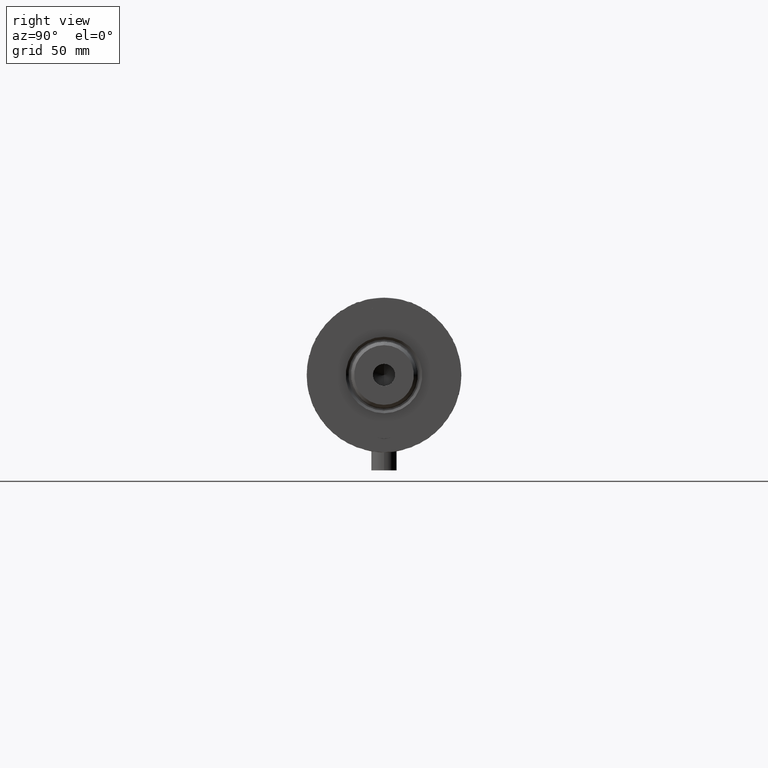
[diagram: clean part render]
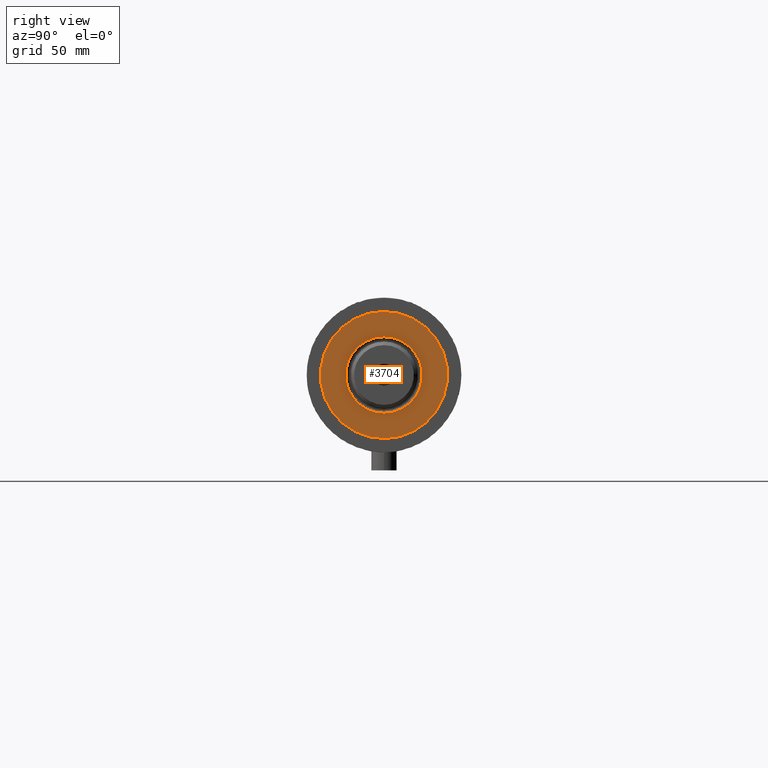
[diagram: same view with one face highlighted and labeled with its STEP entity id]
A machine part, right view. The second image highlights one B-rep face of the part: STEP entity #3704.
In plain terms, the highlighted planar face has unit normal (1, 0, -0).
Its self-contained STEP definition (entity closure, byte-faithful):
#5 = ORIENTED_EDGE ( 'NONE', *, *, #1178, .T. ) ;
#21 = CARTESIAN_POINT ( 'NONE',  ( 0.000000000000000000, 0.000000000000000000, 50.19999999999999574 ) ) ;
#26 = CARTESIAN_POINT ( 'NONE',  ( -18.04999999999996874, 2.210487472460968951E-15, 50.19999999999999574 ) ) ;
#154 = CARTESIAN_POINT ( 'NONE',  ( 0.000000000000000000, 0.000000000000000000, 50.19999999999999574 ) ) ;
#252 = EDGE_LOOP ( 'NONE', ( #5, #2339 ) ) ;
#473 = CIRCLE ( 'NONE', #1729, 30.00000000000000000 ) ;
#527 = EDGE_CURVE ( 'NONE', #4773, #532, #4729, .T. ) ;
#532 = VERTEX_POINT ( 'NONE', #2402 ) ;
#922 = DIRECTION ( 'NONE',  ( 1.000000000000000000, 0.000000000000000000, 0.000000000000000000 ) ) ;
#962 = CIRCLE ( 'NONE', #3645, 18.04999999999996874 ) ;
#1138 = DIRECTION ( 'NONE',  ( 1.000000000000000000, 0.000000000000000000, 0.000000000000000000 ) ) ;
#1178 = EDGE_CURVE ( 'NONE', #532, #4773, #962, .T. ) ;
#1222 = CARTESIAN_POINT ( 'NONE',  ( 30.00000000000000000, 3.673940397442058389E-15, 50.19999999999999574 ) ) ;
#1277 = DIRECTION ( 'NONE',  ( 1.000000000000000000, 0.000000000000000000, 0.000000000000000000 ) ) ;
#1280 = CARTESIAN_POINT ( 'NONE',  ( 0.000000000000000000, 0.000000000000000000, 50.19999999999999574 ) ) ;
#1360 = VERTEX_POINT ( 'NONE', #1442 ) ;
#1387 = VERTEX_POINT ( 'NONE', #1222 ) ;
#1411 = EDGE_LOOP ( 'NONE', ( #4191, #4004 ) ) ;
#1442 = CARTESIAN_POINT ( 'NONE',  ( -30.00000000000000000, 0.000000000000000000, 50.19999999999999574 ) ) ;
#1641 = FACE_BOUND ( 'NONE', #252, .T. ) ;
#1729 = AXIS2_PLACEMENT_3D ( 'NONE', #21, #4422, #1138 ) ;
#1955 = CIRCLE ( 'NONE', #4497, 30.00000000000000000 ) ;
#2053 = AXIS2_PLACEMENT_3D ( 'NONE', #1280, #2762, #4231 ) ;
#2220 = DIRECTION ( 'NONE',  ( 0.000000000000000000, 0.000000000000000000, 1.000000000000000000 ) ) ;
#2290 = EDGE_CURVE ( 'NONE', #1387, #1360, #473, .T. ) ;
#2306 = EDGE_CURVE ( 'NONE', #1360, #1387, #1955, .T. ) ;
#2339 = ORIENTED_EDGE ( 'NONE', *, *, #527, .T. ) ;
#2402 = CARTESIAN_POINT ( 'NONE',  ( 18.04999999999996874, 0.000000000000000000, 50.19999999999999574 ) ) ;
#2731 = AXIS2_PLACEMENT_3D ( 'NONE', #3502, #4163, #922 ) ;
#2762 = DIRECTION ( 'NONE',  ( 0.000000000000000000, 0.000000000000000000, 1.000000000000000000 ) ) ;
#2976 = DIRECTION ( 'NONE',  ( 1.000000000000000000, 0.000000000000000000, 0.000000000000000000 ) ) ;
#3117 = FACE_OUTER_BOUND ( 'NONE', #1411, .T. ) ;
#3502 = CARTESIAN_POINT ( 'NONE',  ( 0.000000000000000000, 0.000000000000000000, 50.19999999999999574 ) ) ;
#3645 = AXIS2_PLACEMENT_3D ( 'NONE', #154, #4251, #1277 ) ;
#3704 = ADVANCED_FACE ( 'NONE', ( #1641, #3117 ), #4256, .T. ) ;
#3829 = CARTESIAN_POINT ( 'NONE',  ( 0.000000000000000000, 0.000000000000000000, 50.19999999999999574 ) ) ;
#4004 = ORIENTED_EDGE ( 'NONE', *, *, #2290, .T. ) ;
#4163 = DIRECTION ( 'NONE',  ( -0.000000000000000000, -0.000000000000000000, -1.000000000000000000 ) ) ;
#4191 = ORIENTED_EDGE ( 'NONE', *, *, #2306, .T. ) ;
#4231 = DIRECTION ( 'NONE',  ( 1.000000000000000000, 0.000000000000000000, -0.000000000000000000 ) ) ;
#4251 = DIRECTION ( 'NONE',  ( -0.000000000000000000, -0.000000000000000000, -1.000000000000000000 ) ) ;
#4256 = PLANE ( 'NONE',  #2053 ) ;
#4422 = DIRECTION ( 'NONE',  ( 0.000000000000000000, 0.000000000000000000, 1.000000000000000000 ) ) ;
#4497 = AXIS2_PLACEMENT_3D ( 'NONE', #3829, #2220, #2976 ) ;
#4729 = CIRCLE ( 'NONE', #2731, 18.04999999999996874 ) ;
#4773 = VERTEX_POINT ( 'NONE', #26 ) ;